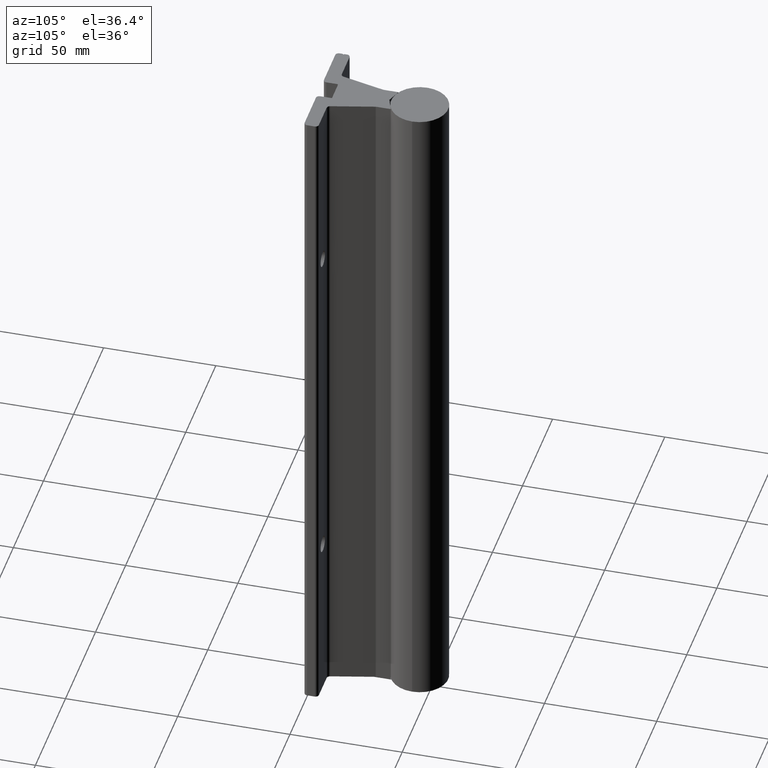
[diagram: clean part render]
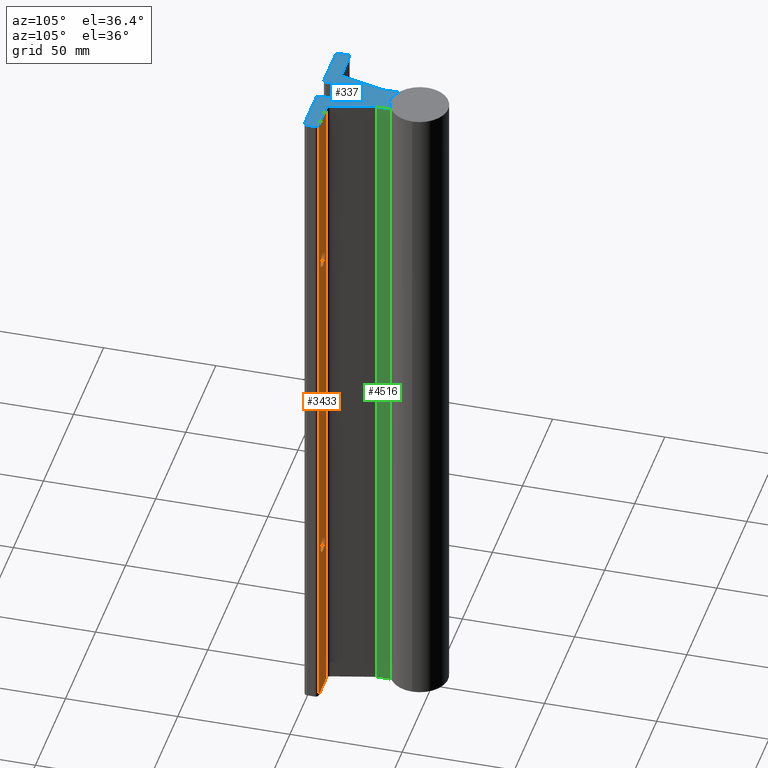
[diagram: same view with three faces highlighted in distinct colors, each labeled with its STEP entity id]
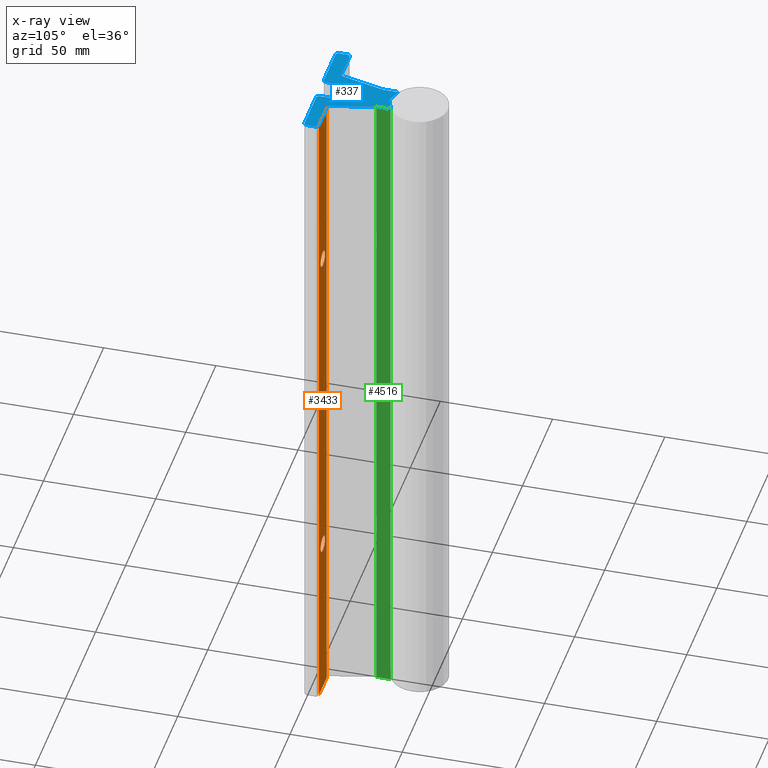
[diagram: x-ray of the same camera — body ghosted, the three highlighted faces saturated]
A machine part, auxiliary view with three faces highlighted in distinct colors.
The next image is the same camera in x-ray (body ghosted, the three faces saturated) — at least one of them is partly hidden behind the body in this view.
Their STEP definitions:

[orange] entity #3433 — the highlighted planar face has unit normal (0, 1, 0).
#56 = AXIS2_PLACEMENT_3D ( 'NONE', #1660, #5735, #5769 ) ;
#105 = DIRECTION ( 'NONE',  ( -1.000000000000000000, 7.291409235758707710E-16, 0.000000000000000000 ) ) ;
#317 = CIRCLE ( 'NONE', #3829, 0.1405000000000000415 ) ;
#435 = EDGE_CURVE ( 'NONE', #5494, #4003, #4183, .T. ) ;
#531 = AXIS2_PLACEMENT_3D ( 'NONE', #1830, #1417, #1363 ) ;
#542 = DIRECTION ( 'NONE',  ( -1.000000000000000000, 6.761083321907651051E-16, 0.000000000000000000 ) ) ;
#579 = DIRECTION ( 'NONE',  ( 0.000000000000000000, 0.000000000000000000, 1.000000000000000000 ) ) ;
#648 = FACE_BOUND ( 'NONE', #2346, .T. ) ;
#697 = ORIENTED_EDGE ( 'NONE', *, *, #5436, .T. ) ;
#741 = VERTEX_POINT ( 'NONE', #2890 ) ;
#887 = CARTESIAN_POINT ( 'NONE',  ( 0.7500000000000001110, 0.2500000000000000555, -8.859500000000000597 ) ) ;
#1130 = CIRCLE ( 'NONE', #4572, 0.1405000000000000415 ) ;
#1277 = EDGE_CURVE ( 'NONE', #3923, #741, #5801, .T. ) ;
#1279 = VERTEX_POINT ( 'NONE', #2075 ) ;
#1294 = EDGE_CURVE ( 'NONE', #5845, #3923, #1691, .T. ) ;
#1334 = ORIENTED_EDGE ( 'NONE', *, *, #1277, .F. ) ;
#1363 = DIRECTION ( 'NONE',  ( -1.000000000000000000, 7.291409235758707710E-16, 0.000000000000000000 ) ) ;
#1417 = DIRECTION ( 'NONE',  ( -6.761083321907651051E-16, -1.000000000000000000, 0.000000000000000000 ) ) ;
#1508 = VECTOR ( 'NONE', #1590, 39.37007874015748143 ) ;
#1523 = LINE ( 'NONE', #2043, #1793 ) ;
#1590 = DIRECTION ( 'NONE',  ( 0.000000000000000000, 0.000000000000000000, 1.000000000000000000 ) ) ;
#1660 = CARTESIAN_POINT ( 'NONE',  ( 1.002500000003299307, 0.2499999999999999167, -14.49573696227415098 ) ) ;
#1691 = LINE ( 'NONE', #4046, #5722 ) ;
#1724 = DIRECTION ( 'NONE',  ( 1.000000000000000000, -6.761083321907651051E-16, 0.000000000000000000 ) ) ;
#1793 = VECTOR ( 'NONE', #579, 39.37007874015748143 ) ;
#1830 = CARTESIAN_POINT ( 'NONE',  ( 0.7500000000000001110, 0.2500000000000000555, -3.000000000000000444 ) ) ;
#1857 = DIRECTION ( 'NONE',  ( -1.000000000000000000, 7.291409235758707710E-16, 0.000000000000000000 ) ) ;
#1934 = DIRECTION ( 'NONE',  ( -6.761083321907651051E-16, -1.000000000000000000, 0.000000000000000000 ) ) ;
#2043 = CARTESIAN_POINT ( 'NONE',  ( 0.4974315324966993579, 0.2500000000000003331, -14.49573696227415098 ) ) ;
#2075 = CARTESIAN_POINT ( 'NONE',  ( 0.7500000000000001110, 0.2500000000000000555, -2.859499999999999709 ) ) ;
#2246 = EDGE_CURVE ( 'NONE', #1279, #2692, #5325, .T. ) ;
#2346 = EDGE_LOOP ( 'NONE', ( #5777, #3414 ) ) ;
#2349 = CARTESIAN_POINT ( 'NONE',  ( 0.7500000000000001110, 0.2500000000000000555, -9.000000000000001776 ) ) ;
#2441 = FACE_BOUND ( 'NONE', #2861, .T. ) ;
#2511 = CARTESIAN_POINT ( 'NONE',  ( 1.002500000003299307, 0.2499999999999999167, -14.49573696227415098 ) ) ;
#2532 = EDGE_CURVE ( 'NONE', #741, #4997, #4744, .T. ) ;
#2554 = FACE_OUTER_BOUND ( 'NONE', #4902, .T. ) ;
#2692 = VERTEX_POINT ( 'NONE', #4220 ) ;
#2861 = EDGE_LOOP ( 'NONE', ( #697, #5463 ) ) ;
#2890 = CARTESIAN_POINT ( 'NONE',  ( 1.002500000003299307, 0.2499999999999999167, 0.000000000000000000 ) ) ;
#3114 = CARTESIAN_POINT ( 'NONE',  ( 0.4974315324966993579, 0.2500000000000003331, 0.000000000000000000 ) ) ;
#3134 = DIRECTION ( 'NONE',  ( -6.761083321907651051E-16, -1.000000000000000000, 0.000000000000000000 ) ) ;
#3357 = CARTESIAN_POINT ( 'NONE',  ( 1.002500000003299307, 0.2499999999999999167, 0.000000000000000000 ) ) ;
#3414 = ORIENTED_EDGE ( 'NONE', *, *, #435, .T. ) ;
#3433 = ADVANCED_FACE ( 'NONE', ( #648, #2441, #2554 ), #5830, .T. ) ;
#3453 = CARTESIAN_POINT ( 'NONE',  ( 0.4974315324966993579, 0.2500000000000002776, -12.00000000000000178 ) ) ;
#3816 = CARTESIAN_POINT ( 'NONE',  ( 0.7500000000000001110, 0.2500000000000000555, -9.000000000000001776 ) ) ;
#3829 = AXIS2_PLACEMENT_3D ( 'NONE', #5466, #3134, #1857 ) ;
#3902 = ORIENTED_EDGE ( 'NONE', *, *, #5049, .T. ) ;
#3923 = VERTEX_POINT ( 'NONE', #5208 ) ;
#3978 = AXIS2_PLACEMENT_3D ( 'NONE', #3816, #1934, #5701 ) ;
#4003 = VERTEX_POINT ( 'NONE', #4314 ) ;
#4005 = EDGE_CURVE ( 'NONE', #4003, #5494, #1130, .T. ) ;
#4046 = CARTESIAN_POINT ( 'NONE',  ( 1.002500000003299307, 0.2499999999999999167, -12.00000000000000178 ) ) ;
#4183 = CIRCLE ( 'NONE', #3978, 0.1405000000000000415 ) ;
#4220 = CARTESIAN_POINT ( 'NONE',  ( 0.7500000000000001110, 0.2500000000000000555, -3.140500000000000735 ) ) ;
#4227 = DIRECTION ( 'NONE',  ( -6.761083321907651051E-16, -1.000000000000000000, 0.000000000000000000 ) ) ;
#4314 = CARTESIAN_POINT ( 'NONE',  ( 0.7500000000000001110, 0.2500000000000000555, -9.140500000000001180 ) ) ;
#4348 = VECTOR ( 'NONE', #542, 39.37007874015748143 ) ;
#4572 = AXIS2_PLACEMENT_3D ( 'NONE', #2349, #4227, #105 ) ;
#4744 = LINE ( 'NONE', #3357, #4348 ) ;
#4902 = EDGE_LOOP ( 'NONE', ( #5679, #3902, #5093, #1334 ) ) ;
#4997 = VERTEX_POINT ( 'NONE', #3114 ) ;
#5049 = EDGE_CURVE ( 'NONE', #5845, #4997, #1523, .T. ) ;
#5093 = ORIENTED_EDGE ( 'NONE', *, *, #2532, .F. ) ;
#5208 = CARTESIAN_POINT ( 'NONE',  ( 1.002500000003299307, 0.2499999999999998890, -12.00000000000000178 ) ) ;
#5325 = CIRCLE ( 'NONE', #531, 0.1405000000000000415 ) ;
#5436 = EDGE_CURVE ( 'NONE', #2692, #1279, #317, .T. ) ;
#5463 = ORIENTED_EDGE ( 'NONE', *, *, #2246, .T. ) ;
#5466 = CARTESIAN_POINT ( 'NONE',  ( 0.7500000000000001110, 0.2500000000000000555, -3.000000000000000444 ) ) ;
#5494 = VERTEX_POINT ( 'NONE', #887 ) ;
#5679 = ORIENTED_EDGE ( 'NONE', *, *, #1294, .F. ) ;
#5701 = DIRECTION ( 'NONE',  ( -1.000000000000000000, 7.291409235758707710E-16, 0.000000000000000000 ) ) ;
#5722 = VECTOR ( 'NONE', #1724, 39.37007874015748143 ) ;
#5735 = DIRECTION ( 'NONE',  ( 6.761083321907651051E-16, 1.000000000000000000, -0.000000000000000000 ) ) ;
#5769 = DIRECTION ( 'NONE',  ( -1.000000000000000000, 6.761083321907651051E-16, 0.000000000000000000 ) ) ;
#5777 = ORIENTED_EDGE ( 'NONE', *, *, #4005, .T. ) ;
#5801 = LINE ( 'NONE', #2511, #1508 ) ;
#5830 = PLANE ( 'NONE',  #56 ) ;
#5845 = VERTEX_POINT ( 'NONE', #3453 ) ;

[blue] entity #337 — the highlighted planar face has unit normal (0, 0, 1).
#39 = VERTEX_POINT ( 'NONE', #2924 ) ;
#90 = CARTESIAN_POINT ( 'NONE',  ( -0.2500000000033027470, 1.305666897938102977, 0.000000000000000000 ) ) ;
#106 = AXIS2_PLACEMENT_3D ( 'NONE', #4982, #3576, #4951 ) ;
#115 = AXIS2_PLACEMENT_3D ( 'NONE', #2050, #1135, #2113 ) ;
#125 = CIRCLE ( 'NONE', #3461, 0.03200000000000002842 ) ;
#135 = VERTEX_POINT ( 'NONE', #2021 ) ;
#141 = AXIS2_PLACEMENT_3D ( 'NONE', #282, #3954, #185 ) ;
#145 = ORIENTED_EDGE ( 'NONE', *, *, #3524, .T. ) ;
#165 = EDGE_CURVE ( 'NONE', #4053, #3595, #5447, .T. ) ;
#184 = LINE ( 'NONE', #4910, #4050 ) ;
#185 = DIRECTION ( 'NONE',  ( 1.000000000000000000, 0.000000000000000000, 0.000000000000000000 ) ) ;
#213 = CARTESIAN_POINT ( 'NONE',  ( -0.2050000000033027348, 0.06000000000000010880, 0.000000000000000000 ) ) ;
#270 = ORIENTED_EDGE ( 'NONE', *, *, #2532, .T. ) ;
#282 = CARTESIAN_POINT ( 'NONE',  ( 0.2179999999966966973, 1.305666897899298906, 0.000000000000000000 ) ) ;
#283 = EDGE_CURVE ( 'NONE', #39, #135, #1324, .T. ) ;
#337 = ADVANCED_FACE ( 'NONE', ( #3159 ), #3245, .T. ) ;
#346 = ORIENTED_EDGE ( 'NONE', *, *, #4308, .T. ) ;
#359 = LINE ( 'NONE', #826, #5162 ) ;
#382 = VERTEX_POINT ( 'NONE', #3769 ) ;
#393 = VECTOR ( 'NONE', #3315, 39.37007874015748143 ) ;
#398 = VERTEX_POINT ( 'NONE', #4316 ) ;
#418 = AXIS2_PLACEMENT_3D ( 'NONE', #1106, #4857, #3567 ) ;
#424 = DIRECTION ( 'NONE',  ( 2.156722100261260166E-15, 1.000000000000000000, 0.000000000000000000 ) ) ;
#475 = EDGE_CURVE ( 'NONE', #3506, #2984, #2385, .T. ) ;
#494 = DIRECTION ( 'NONE',  ( 1.000000000000000000, -8.986342084421927875E-16, 0.000000000000000000 ) ) ;
#538 = VECTOR ( 'NONE', #5817, 39.37007874015748854 ) ;
#542 = DIRECTION ( 'NONE',  ( -1.000000000000000000, 6.761083321907651051E-16, 0.000000000000000000 ) ) ;
#568 = DIRECTION ( 'NONE',  ( 1.000000000000000000, 0.000000000000000000, 0.000000000000000000 ) ) ;
#593 = EDGE_CURVE ( 'NONE', #1040, #5239, #705, .T. ) ;
#611 = CIRCLE ( 'NONE', #106, 0.01500000000000031863 ) ;
#620 = DIRECTION ( 'NONE',  ( -0.2419218955872262378, 0.9702957262790985471, 0.000000000000000000 ) ) ;
#705 = LINE ( 'NONE', #4932, #4683 ) ;
#709 = VERTEX_POINT ( 'NONE', #4719 ) ;
#718 = CARTESIAN_POINT ( 'NONE',  ( -1.023021208602842957, 0.003618442752846434858, 0.000000000000000000 ) ) ;
#741 = VERTEX_POINT ( 'NONE', #2890 ) ;
#746 = EDGE_CURVE ( 'NONE', #4997, #2826, #3497, .T. ) ;
#753 = VECTOR ( 'NONE', #494, 39.37007874015748143 ) ;
#771 = EDGE_CURVE ( 'NONE', #2065, #774, #4922, .T. ) ;
#774 = VERTEX_POINT ( 'NONE', #4009 ) ;
#826 = CARTESIAN_POINT ( 'NONE',  ( -1.062500000003302247, 0.1175000000000001876, 0.000000000000000000 ) ) ;
#870 = CARTESIAN_POINT ( 'NONE',  ( -1.062500000003302469, 0.1175000000000001876, 0.000000000000000000 ) ) ;
#871 = EDGE_LOOP ( 'NONE', ( #3535, #4229, #3534, #5143, #944, #1675, #1349, #1177, #1192, #4505, #346, #145, #4540, #5417, #2000, #5109, #270, #4947, #2388, #2651, #3067, #4980, #2725, #1174, #3992, #1856, #2914, #3168, #3184, #4880, #2846, #2239, #5609, #1896, #2644, #1991, #3095 ) ) ;
#889 = CARTESIAN_POINT ( 'NONE',  ( -0.2180000000033027185, 1.305666897938102977, 0.000000000000000000 ) ) ;
#905 = LINE ( 'NONE', #1872, #4955 ) ;
#925 = CARTESIAN_POINT ( 'NONE',  ( 1.062500000003299805, 0.06000000000000058759, 0.000000000000000000 ) ) ;
#944 = ORIENTED_EDGE ( 'NONE', *, *, #4052, .T. ) ;
#952 = VECTOR ( 'NONE', #1751, 39.37007874015748854 ) ;
#1026 = DIRECTION ( 'NONE',  ( 0.000000000000000000, 0.000000000000000000, 1.000000000000000000 ) ) ;
#1040 = VERTEX_POINT ( 'NONE', #1969 ) ;
#1049 = LINE ( 'NONE', #3325, #4944 ) ;
#1059 = LINE ( 'NONE', #5726, #4278 ) ;
#1100 = CARTESIAN_POINT ( 'NONE',  ( -1.052500000003302905, 0.1417264973081044654, 0.000000000000000000 ) ) ;
#1106 = CARTESIAN_POINT ( 'NONE',  ( 1.002500000003299307, 0.06000000000000058759, 0.000000000000000000 ) ) ;
#1134 = VERTEX_POINT ( 'NONE', #2357 ) ;
#1135 = DIRECTION ( 'NONE',  ( 0.000000000000000000, 0.000000000000000000, 1.000000000000000000 ) ) ;
#1158 = DIRECTION ( 'NONE',  ( -0.000000000000000000, -0.000000000000000000, -1.000000000000000000 ) ) ;
#1164 = CARTESIAN_POINT ( 'NONE',  ( -1.062500000003302247, 0.1474999999999999922, 0.000000000000000000 ) ) ;
#1174 = ORIENTED_EDGE ( 'NONE', *, *, #4149, .T. ) ;
#1177 = ORIENTED_EDGE ( 'NONE', *, *, #4864, .T. ) ;
#1183 = CARTESIAN_POINT ( 'NONE',  ( -0.3125000000033035241, 1.054219864243891802, 0.000000000000000000 ) ) ;
#1192 = ORIENTED_EDGE ( 'NONE', *, *, #3921, .T. ) ;
#1239 = CARTESIAN_POINT ( 'NONE',  ( -1.002500000003302638, 0.06000000000000031697, 0.000000000000000000 ) ) ;
#1241 = EDGE_CURVE ( 'NONE', #2038, #741, #4926, .T. ) ;
#1259 = EDGE_CURVE ( 'NONE', #135, #1271, #5397, .T. ) ;
#1271 = VERTEX_POINT ( 'NONE', #1100 ) ;
#1284 = VERTEX_POINT ( 'NONE', #2170 ) ;
#1289 = DIRECTION ( 'NONE',  ( 1.285575526430243055E-14, -1.000000000000000000, 0.000000000000000000 ) ) ;
#1324 = LINE ( 'NONE', #5944, #2880 ) ;
#1326 = CIRCLE ( 'NONE', #1422, 0.06000000000000017819 ) ;
#1337 = LINE ( 'NONE', #2225, #952 ) ;
#1346 = AXIS2_PLACEMENT_3D ( 'NONE', #1894, #4783, #3759 ) ;
#1349 = ORIENTED_EDGE ( 'NONE', *, *, #475, .T. ) ;
#1359 = EDGE_CURVE ( 'NONE', #709, #1134, #5695, .T. ) ;
#1422 = AXIS2_PLACEMENT_3D ( 'NONE', #5406, #4001, #5882 ) ;
#1472 = VERTEX_POINT ( 'NONE', #4011 ) ;
#1511 = LINE ( 'NONE', #2937, #2006 ) ;
#1537 = VECTOR ( 'NONE', #5862, 39.37007874015748854 ) ;
#1593 = CARTESIAN_POINT ( 'NONE',  ( -1.052500000003302905, 0.1232735026918957977, 0.000000000000000000 ) ) ;
#1622 = DIRECTION ( 'NONE',  ( 1.000000000000000000, 0.000000000000000000, 0.000000000000000000 ) ) ;
#1675 = ORIENTED_EDGE ( 'NONE', *, *, #4327, .T. ) ;
#1701 = VECTOR ( 'NONE', #3027, 39.37007874015748854 ) ;
#1709 = VECTOR ( 'NONE', #2874, 39.37007874015748854 ) ;
#1751 = DIRECTION ( 'NONE',  ( 0.9396926207858971036, -0.3420201433256993551, 0.000000000000000000 ) ) ;
#1759 = CARTESIAN_POINT ( 'NONE',  ( 0.2518565171966969940, 1.039099745799999752, 0.000000000000000000 ) ) ;
#1763 = EDGE_CURVE ( 'NONE', #1271, #3753, #2488, .T. ) ;
#1856 = ORIENTED_EDGE ( 'NONE', *, *, #2918, .T. ) ;
#1872 = CARTESIAN_POINT ( 'NONE',  ( 4.097771990496394828E-16, 1.217911113771135811, 0.000000000000000000 ) ) ;
#1894 = CARTESIAN_POINT ( 'NONE',  ( 0.4974315325076398842, 0.3124999999999996669, 0.000000000000000000 ) ) ;
#1896 = ORIENTED_EDGE ( 'NONE', *, *, #1763, .T. ) ;
#1928 = VERTEX_POINT ( 'NONE', #3802 ) ;
#1933 = EDGE_CURVE ( 'NONE', #1472, #3038, #5684, .T. ) ;
#1965 = DIRECTION ( 'NONE',  ( 0.9396926207859099822, 0.3420201433256641055, 0.000000000000000000 ) ) ;
#1969 = CARTESIAN_POINT ( 'NONE',  ( -1.013079618845818874, 1.570812596356951301E-15, 0.000000000000000000 ) ) ;
#1991 = ORIENTED_EDGE ( 'NONE', *, *, #3464, .T. ) ;
#1996 = CARTESIAN_POINT ( 'NONE',  ( 0.4367880495966964816, 0.2973798815999993961, 0.000000000000000000 ) ) ;
#2000 = ORIENTED_EDGE ( 'NONE', *, *, #4271, .T. ) ;
#2006 = VECTOR ( 'NONE', #1965, 39.37007874015748854 ) ;
#2021 = CARTESIAN_POINT ( 'NONE',  ( -1.062500000003302247, 0.1474999999999999922, 0.000000000000000000 ) ) ;
#2038 = VERTEX_POINT ( 'NONE', #5781 ) ;
#2050 = CARTESIAN_POINT ( 'NONE',  ( 1.002500000003299307, 0.1899999999999999467, 0.000000000000000000 ) ) ;
#2058 = DIRECTION ( 'NONE',  ( -0.000000000000000000, -0.000000000000000000, -1.000000000000000000 ) ) ;
#2065 = VERTEX_POINT ( 'NONE', #3890 ) ;
#2072 = EDGE_CURVE ( 'NONE', #398, #2206, #184, .T. ) ;
#2090 = VECTOR ( 'NONE', #5319, 39.37007874015748143 ) ;
#2098 = VERTEX_POINT ( 'NONE', #3135 ) ;
#2113 = DIRECTION ( 'NONE',  ( 1.000000000000000000, 0.000000000000000000, 0.000000000000000000 ) ) ;
#2131 = CARTESIAN_POINT ( 'NONE',  ( 0.3124999999966975306, 1.054219864644973415, 0.000000000000000000 ) ) ;
#2170 = CARTESIAN_POINT ( 'NONE',  ( -0.2500000000033027470, 1.054219864300000475, 0.000000000000000000 ) ) ;
#2206 = VERTEX_POINT ( 'NONE', #3797 ) ;
#2225 = CARTESIAN_POINT ( 'NONE',  ( 0.2444787913971579463, 0.003618442752846076204, 0.000000000000000000 ) ) ;
#2239 = ORIENTED_EDGE ( 'NONE', *, *, #283, .T. ) ;
#2266 = DIRECTION ( 'NONE',  ( 1.000000000000000000, 0.000000000000000000, -0.000000000000000000 ) ) ;
#2269 = CIRCLE ( 'NONE', #3446, 0.06250000000000069389 ) ;
#2287 = EDGE_CURVE ( 'NONE', #4542, #4018, #125, .T. ) ;
#2348 = EDGE_CURVE ( 'NONE', #5674, #2098, #5719, .T. ) ;
#2357 = CARTESIAN_POINT ( 'NONE',  ( 0.2499999999966968922, 1.305666897899299350, 0.000000000000000000 ) ) ;
#2374 = DIRECTION ( 'NONE',  ( -0.9396926208019645843, 0.3420201432815545561, 0.000000000000000000 ) ) ;
#2385 = LINE ( 'NONE', #3848, #753 ) ;
#2388 = ORIENTED_EDGE ( 'NONE', *, *, #3667, .T. ) ;
#2422 = EDGE_CURVE ( 'NONE', #774, #398, #5526, .T. ) ;
#2449 = EDGE_CURVE ( 'NONE', #1284, #2065, #2864, .T. ) ;
#2456 = CARTESIAN_POINT ( 'NONE',  ( -1.052500000003302905, 0.1417264973081045210, 0.000000000000000000 ) ) ;
#2488 = LINE ( 'NONE', #2456, #2090 ) ;
#2527 = CARTESIAN_POINT ( 'NONE',  ( -0.2518565171033020911, 1.039099745799999752, 0.000000000000000000 ) ) ;
#2531 = CARTESIAN_POINT ( 'NONE',  ( -0.2500000000033027470, 1.305666897938102977, 0.000000000000000000 ) ) ;
#2532 = EDGE_CURVE ( 'NONE', #741, #4997, #4744, .T. ) ;
#2553 = DIRECTION ( 'NONE',  ( -0.000000000000000000, -0.000000000000000000, -1.000000000000000000 ) ) ;
#2592 = AXIS2_PLACEMENT_3D ( 'NONE', #5465, #3221, #2266 ) ;
#2610 = CARTESIAN_POINT ( 'NONE',  ( -0.1900000000033017222, 0.2500000000000000555, 0.000000000000000000 ) ) ;
#2644 = ORIENTED_EDGE ( 'NONE', *, *, #6062, .T. ) ;
#2651 = ORIENTED_EDGE ( 'NONE', *, *, #4977, .T. ) ;
#2671 = AXIS2_PLACEMENT_3D ( 'NONE', #1183, #1158, #3048 ) ;
#2678 = LINE ( 'NONE', #3185, #3199 ) ;
#2710 = DIRECTION ( 'NONE',  ( 1.000000000000000000, 0.000000000000000000, 0.000000000000000000 ) ) ;
#2725 = ORIENTED_EDGE ( 'NONE', *, *, #3012, .T. ) ;
#2781 = LINE ( 'NONE', #3368, #3772 ) ;
#2796 = AXIS2_PLACEMENT_3D ( 'NONE', #3379, #2816, #568 ) ;
#2816 = DIRECTION ( 'NONE',  ( 0.000000000000000000, 0.000000000000000000, 1.000000000000000000 ) ) ;
#2826 = VERTEX_POINT ( 'NONE', #3609 ) ;
#2839 = CARTESIAN_POINT ( 'NONE',  ( -1.023021208602842957, 0.003618442752846349423, 0.000000000000000000 ) ) ;
#2846 = ORIENTED_EDGE ( 'NONE', *, *, #3617, .T. ) ;
#2864 = CIRCLE ( 'NONE', #2671, 0.06250000000000073552 ) ;
#2867 = CARTESIAN_POINT ( 'NONE',  ( 0.2649999999966984876, 0.06000000000000031697, 0.000000000000000000 ) ) ;
#2874 = DIRECTION ( 'NONE',  ( 0.9396926207859244151, 0.3420201433256246926, 0.000000000000000000 ) ) ;
#2880 = VECTOR ( 'NONE', #1289, 39.37007874015748143 ) ;
#2890 = CARTESIAN_POINT ( 'NONE',  ( 1.002500000003299307, 0.2499999999999999167, 0.000000000000000000 ) ) ;
#2914 = ORIENTED_EDGE ( 'NONE', *, *, #2449, .T. ) ;
#2918 = EDGE_CURVE ( 'NONE', #4018, #1284, #5283, .T. ) ;
#2924 = CARTESIAN_POINT ( 'NONE',  ( -1.062500000003302913, 0.1899999999999999467, 0.000000000000000000 ) ) ;
#2932 = EDGE_CURVE ( 'NONE', #5239, #4053, #1511, .T. ) ;
#2937 = CARTESIAN_POINT ( 'NONE',  ( -0.2544203811607963495, -1.365923996832131609E-16, 0.000000000000000000 ) ) ;
#2984 = VERTEX_POINT ( 'NONE', #4214 ) ;
#3006 = EDGE_CURVE ( 'NONE', #4601, #1040, #3778, .T. ) ;
#3012 = EDGE_CURVE ( 'NONE', #4802, #1928, #1049, .T. ) ;
#3027 = DIRECTION ( 'NONE',  ( 0.8660254037844538066, -0.4999999999999735767, 0.000000000000000000 ) ) ;
#3038 = VERTEX_POINT ( 'NONE', #4883 ) ;
#3048 = DIRECTION ( 'NONE',  ( 1.000000000000000000, 0.000000000000000000, 0.000000000000000000 ) ) ;
#3067 = ORIENTED_EDGE ( 'NONE', *, *, #1359, .T. ) ;
#3068 = EDGE_CURVE ( 'NONE', #1134, #4802, #4565, .T. ) ;
#3095 = ORIENTED_EDGE ( 'NONE', *, *, #5066, .T. ) ;
#3104 = AXIS2_PLACEMENT_3D ( 'NONE', #2610, #4983, #2710 ) ;
#3114 = CARTESIAN_POINT ( 'NONE',  ( 0.4974315324966993579, 0.2500000000000003331, 0.000000000000000000 ) ) ;
#3135 = CARTESIAN_POINT ( 'NONE',  ( 0.2444787913971579463, 0.003618442752846084878, 0.000000000000000000 ) ) ;
#3159 = FACE_OUTER_BOUND ( 'NONE', #871, .T. ) ;
#3168 = ORIENTED_EDGE ( 'NONE', *, *, #771, .T. ) ;
#3184 = ORIENTED_EDGE ( 'NONE', *, *, #2422, .T. ) ;
#3185 = CARTESIAN_POINT ( 'NONE',  ( -0.2050000000033029290, 0.06000000000000010880, 0.000000000000000000 ) ) ;
#3199 = VECTOR ( 'NONE', #424, 39.37007874015748143 ) ;
#3202 = LINE ( 'NONE', #1996, #5842 ) ;
#3218 = VERTEX_POINT ( 'NONE', #925 ) ;
#3221 = DIRECTION ( 'NONE',  ( 0.000000000000000000, 0.000000000000000000, 1.000000000000000000 ) ) ;
#3227 = CARTESIAN_POINT ( 'NONE',  ( -0.2544203811607962940, 0.000000000000000000, 0.000000000000000000 ) ) ;
#3239 = VERTEX_POINT ( 'NONE', #3462 ) ;
#3245 = PLANE ( 'NONE',  #2592 ) ;
#3315 = DIRECTION ( 'NONE',  ( 1.358063343679013871E-16, 1.000000000000000000, 0.000000000000000000 ) ) ;
#3321 = DIRECTION ( 'NONE',  ( 0.000000000000000000, 0.000000000000000000, 1.000000000000000000 ) ) ;
#3325 = CARTESIAN_POINT ( 'NONE',  ( 0.2498416863023912027, 1.308846050806876882, 0.000000000000000000 ) ) ;
#3357 = CARTESIAN_POINT ( 'NONE',  ( 1.002500000003299307, 0.2499999999999999167, 0.000000000000000000 ) ) ;
#3368 = CARTESIAN_POINT ( 'NONE',  ( 0.2049999999966982400, 0.2500000000000001110, 0.000000000000000000 ) ) ;
#3374 = DIRECTION ( 'NONE',  ( 0.000000000000000000, 0.000000000000000000, 1.000000000000000000 ) ) ;
#3379 = CARTESIAN_POINT ( 'NONE',  ( -0.2650000000033024827, 0.06000000000000038636, 0.000000000000000000 ) ) ;
#3388 = CARTESIAN_POINT ( 'NONE',  ( -1.052500000003302905, 0.1232735026918957977, 0.000000000000000000 ) ) ;
#3440 = CARTESIAN_POINT ( 'NONE',  ( -0.2498416863082725259, 1.308846050852938259, 0.000000000000000000 ) ) ;
#3446 = AXIS2_PLACEMENT_3D ( 'NONE', #2131, #2058, #5791 ) ;
#3461 = AXIS2_PLACEMENT_3D ( 'NONE', #889, #3321, #4209 ) ;
#3462 = CARTESIAN_POINT ( 'NONE',  ( 0.2544203811541909666, -3.414809992080329023E-17, 0.000000000000000000 ) ) ;
#3464 = EDGE_CURVE ( 'NONE', #5201, #4784, #359, .T. ) ;
#3497 = CIRCLE ( 'NONE', #1346, 0.06249999999999933387 ) ;
#3498 = DIRECTION ( 'NONE',  ( 1.000000000000000000, 0.000000000000000000, 0.000000000000000000 ) ) ;
#3506 = VERTEX_POINT ( 'NONE', #6012 ) ;
#3518 = DIRECTION ( 'NONE',  ( -4.202843067175812201E-15, 1.000000000000000000, 0.000000000000000000 ) ) ;
#3524 = EDGE_CURVE ( 'NONE', #3239, #1472, #3706, .T. ) ;
#3534 = ORIENTED_EDGE ( 'NONE', *, *, #2932, .T. ) ;
#3535 = ORIENTED_EDGE ( 'NONE', *, *, #3006, .T. ) ;
#3567 = DIRECTION ( 'NONE',  ( 1.000000000000000000, 0.000000000000000000, 0.000000000000000000 ) ) ;
#3575 = AXIS2_PLACEMENT_3D ( 'NONE', #2867, #3374, #5249 ) ;
#3576 = DIRECTION ( 'NONE',  ( -0.000000000000000000, -0.000000000000000000, -1.000000000000000000 ) ) ;
#3595 = VERTEX_POINT ( 'NONE', #213 ) ;
#3609 = CARTESIAN_POINT ( 'NONE',  ( 0.4367880495966964260, 0.2973798815999993961, 0.000000000000000000 ) ) ;
#3617 = EDGE_CURVE ( 'NONE', #2206, #39, #1326, .T. ) ;
#3667 = EDGE_CURVE ( 'NONE', #2826, #4027, #3202, .T. ) ;
#3706 = LINE ( 'NONE', #4196, #5550 ) ;
#3753 = VERTEX_POINT ( 'NONE', #1593 ) ;
#3759 = DIRECTION ( 'NONE',  ( 1.000000000000000000, 0.000000000000000000, 0.000000000000000000 ) ) ;
#3769 = CARTESIAN_POINT ( 'NONE',  ( 0.2049999999966982123, 0.2500000000000001110, 0.000000000000000000 ) ) ;
#3772 = VECTOR ( 'NONE', #3814, 39.37007874015748143 ) ;
#3778 = LINE ( 'NONE', #2839, #4557 ) ;
#3797 = CARTESIAN_POINT ( 'NONE',  ( -1.002500000003302860, 0.2500000000000000555, 0.000000000000000000 ) ) ;
#3802 = CARTESIAN_POINT ( 'NONE',  ( 4.097771990496394828E-16, 1.217911113771135811, 0.000000000000000000 ) ) ;
#3814 = DIRECTION ( 'NONE',  ( 1.976995258572823265E-15, -1.000000000000000000, 0.000000000000000000 ) ) ;
#3839 = DIRECTION ( 'NONE',  ( 1.000000000000000000, 0.000000000000000000, 0.000000000000000000 ) ) ;
#3848 = CARTESIAN_POINT ( 'NONE',  ( -0.1900000000033017222, 0.2650000000000007350, 0.000000000000000000 ) ) ;
#3862 = DIRECTION ( 'NONE',  ( -0.9396926208550562265, -0.3420201431356865718, 0.000000000000000000 ) ) ;
#3890 = CARTESIAN_POINT ( 'NONE',  ( -0.2518565171033020356, 1.039099745799999752, 0.000000000000000000 ) ) ;
#3921 = EDGE_CURVE ( 'NONE', #382, #5674, #2781, .T. ) ;
#3954 = DIRECTION ( 'NONE',  ( 0.000000000000000000, 0.000000000000000000, 1.000000000000000000 ) ) ;
#3982 = CARTESIAN_POINT ( 'NONE',  ( -1.062500000003302025, 0.06000000000000018513, 0.000000000000000000 ) ) ;
#3992 = ORIENTED_EDGE ( 'NONE', *, *, #2287, .T. ) ;
#4001 = DIRECTION ( 'NONE',  ( 0.000000000000000000, 0.000000000000000000, 1.000000000000000000 ) ) ;
#4009 = CARTESIAN_POINT ( 'NONE',  ( -0.4367880495033028554, 0.2973798815999998402, 0.000000000000000000 ) ) ;
#4011 = CARTESIAN_POINT ( 'NONE',  ( 1.013079618845805774, 0.000000000000000000, 0.000000000000000000 ) ) ;
#4018 = VERTEX_POINT ( 'NONE', #2531 ) ;
#4027 = VERTEX_POINT ( 'NONE', #1759 ) ;
#4041 = CARTESIAN_POINT ( 'NONE',  ( -0.2444787914037632459, 0.003618442752845649462, 0.000000000000000000 ) ) ;
#4045 = VERTEX_POINT ( 'NONE', #5456 ) ;
#4050 = VECTOR ( 'NONE', #5257, 39.37007874015748143 ) ;
#4052 = EDGE_CURVE ( 'NONE', #3595, #4045, #2678, .T. ) ;
#4053 = VERTEX_POINT ( 'NONE', #4041 ) ;
#4106 = DIRECTION ( 'NONE',  ( 4.751039988981327336E-15, -1.000000000000000000, 0.000000000000000000 ) ) ;
#4134 = CARTESIAN_POINT ( 'NONE',  ( 0.2498416863023912027, 1.308846050806876882, 0.000000000000000000 ) ) ;
#4149 = EDGE_CURVE ( 'NONE', #1928, #4542, #905, .T. ) ;
#4196 = CARTESIAN_POINT ( 'NONE',  ( -2.500000000000000000, 0.000000000000000000, 0.000000000000000000 ) ) ;
#4209 = DIRECTION ( 'NONE',  ( 1.000000000000000000, 0.000000000000000000, 0.000000000000000000 ) ) ;
#4214 = CARTESIAN_POINT ( 'NONE',  ( 0.1899999999966978936, 0.2650000000000004019, 0.000000000000000000 ) ) ;
#4229 = ORIENTED_EDGE ( 'NONE', *, *, #593, .T. ) ;
#4271 = EDGE_CURVE ( 'NONE', #3218, #2038, #1059, .T. ) ;
#4278 = VECTOR ( 'NONE', #3518, 39.37007874015748143 ) ;
#4308 = EDGE_CURVE ( 'NONE', #2098, #3239, #1337, .T. ) ;
#4316 = CARTESIAN_POINT ( 'NONE',  ( -0.4974315324033023455, 0.2499999999999995837, 0.000000000000000000 ) ) ;
#4322 = AXIS2_PLACEMENT_3D ( 'NONE', #1239, #1026, #3839 ) ;
#4327 = EDGE_CURVE ( 'NONE', #4045, #3506, #4685, .T. ) ;
#4348 = VECTOR ( 'NONE', #542, 39.37007874015748143 ) ;
#4505 = ORIENTED_EDGE ( 'NONE', *, *, #2348, .T. ) ;
#4540 = ORIENTED_EDGE ( 'NONE', *, *, #1933, .T. ) ;
#4542 = VERTEX_POINT ( 'NONE', #3440 ) ;
#4557 = VECTOR ( 'NONE', #5712, 39.37007874015748854 ) ;
#4565 = CIRCLE ( 'NONE', #141, 0.03200000000000019496 ) ;
#4601 = VERTEX_POINT ( 'NONE', #718 ) ;
#4683 = VECTOR ( 'NONE', #3498, 39.37007874015748143 ) ;
#4685 = CIRCLE ( 'NONE', #3104, 0.01500000000000072803 ) ;
#4699 = CARTESIAN_POINT ( 'NONE',  ( 0.2499999999966968089, 1.054219864300000475, 0.000000000000000000 ) ) ;
#4719 = CARTESIAN_POINT ( 'NONE',  ( 0.2499999999966968089, 1.054219864300000475, 0.000000000000000000 ) ) ;
#4744 = LINE ( 'NONE', #3357, #4348 ) ;
#4783 = DIRECTION ( 'NONE',  ( -0.000000000000000000, -0.000000000000000000, -1.000000000000000000 ) ) ;
#4784 = VERTEX_POINT ( 'NONE', #3982 ) ;
#4802 = VERTEX_POINT ( 'NONE', #4134 ) ;
#4855 = VECTOR ( 'NONE', #5685, 39.37007874015748143 ) ;
#4857 = DIRECTION ( 'NONE',  ( 0.000000000000000000, 0.000000000000000000, 1.000000000000000000 ) ) ;
#4864 = EDGE_CURVE ( 'NONE', #2984, #382, #611, .T. ) ;
#4880 = ORIENTED_EDGE ( 'NONE', *, *, #2072, .T. ) ;
#4883 = CARTESIAN_POINT ( 'NONE',  ( 1.023021208602838961, 0.003618442752845333309, 0.000000000000000000 ) ) ;
#4910 = CARTESIAN_POINT ( 'NONE',  ( -0.4974315324033023455, 0.2499999999999998057, 0.000000000000000000 ) ) ;
#4922 = LINE ( 'NONE', #2527, #1537 ) ;
#4926 = CIRCLE ( 'NONE', #115, 0.05999999999999990757 ) ;
#4932 = CARTESIAN_POINT ( 'NONE',  ( -2.500000000000000000, 0.000000000000000000, 0.000000000000000000 ) ) ;
#4944 = VECTOR ( 'NONE', #3862, 39.37007874015748143 ) ;
#4947 = ORIENTED_EDGE ( 'NONE', *, *, #746, .T. ) ;
#4951 = DIRECTION ( 'NONE',  ( 1.000000000000000000, 0.000000000000000000, 0.000000000000000000 ) ) ;
#4955 = VECTOR ( 'NONE', #2374, 39.37007874015748854 ) ;
#4977 = EDGE_CURVE ( 'NONE', #4027, #709, #2269, .T. ) ;
#4980 = ORIENTED_EDGE ( 'NONE', *, *, #3068, .T. ) ;
#4982 = CARTESIAN_POINT ( 'NONE',  ( 0.1899999999966978936, 0.2500000000000000555, 0.000000000000000000 ) ) ;
#4983 = DIRECTION ( 'NONE',  ( -0.000000000000000000, -0.000000000000000000, -1.000000000000000000 ) ) ;
#4997 = VERTEX_POINT ( 'NONE', #3114 ) ;
#5066 = EDGE_CURVE ( 'NONE', #4784, #4601, #5911, .T. ) ;
#5084 = DIRECTION ( 'NONE',  ( 1.000000000000000000, 0.000000000000000000, 0.000000000000000000 ) ) ;
#5109 = ORIENTED_EDGE ( 'NONE', *, *, #1241, .T. ) ;
#5143 = ORIENTED_EDGE ( 'NONE', *, *, #165, .T. ) ;
#5162 = VECTOR ( 'NONE', #4106, 39.37007874015748143 ) ;
#5201 = VERTEX_POINT ( 'NONE', #870 ) ;
#5239 = VERTEX_POINT ( 'NONE', #3227 ) ;
#5249 = DIRECTION ( 'NONE',  ( 1.000000000000000000, 0.000000000000000000, 0.000000000000000000 ) ) ;
#5257 = DIRECTION ( 'NONE',  ( -1.000000000000000000, 5.408866656525876571E-16, 0.000000000000000000 ) ) ;
#5283 = LINE ( 'NONE', #90, #4855 ) ;
#5319 = DIRECTION ( 'NONE',  ( 0.000000000000000000, -1.000000000000000000, 0.000000000000000000 ) ) ;
#5332 = AXIS2_PLACEMENT_3D ( 'NONE', #5829, #2553, #1622 ) ;
#5365 = EDGE_CURVE ( 'NONE', #3038, #3218, #5614, .T. ) ;
#5397 = LINE ( 'NONE', #1164, #1701 ) ;
#5406 = CARTESIAN_POINT ( 'NONE',  ( -1.002500000003302638, 0.1899999999999999467, 0.000000000000000000 ) ) ;
#5417 = ORIENTED_EDGE ( 'NONE', *, *, #5365, .T. ) ;
#5447 = CIRCLE ( 'NONE', #2796, 0.05999999999999976880 ) ;
#5456 = CARTESIAN_POINT ( 'NONE',  ( -0.2050000000033025405, 0.2500000000000001110, -0.000000000000000000 ) ) ;
#5465 = CARTESIAN_POINT ( 'NONE',  ( 0.000000000000000000, 0.000000000000000000, 0.000000000000000000 ) ) ;
#5526 = CIRCLE ( 'NONE', #5332, 0.06250000000000015266 ) ;
#5550 = VECTOR ( 'NONE', #5084, 39.37007874015748143 ) ;
#5598 = CARTESIAN_POINT ( 'NONE',  ( 1.013079618845805774, 0.000000000000000000, 0.000000000000000000 ) ) ;
#5609 = ORIENTED_EDGE ( 'NONE', *, *, #1259, .T. ) ;
#5614 = CIRCLE ( 'NONE', #418, 0.06000000000000045575 ) ;
#5674 = VERTEX_POINT ( 'NONE', #5900 ) ;
#5684 = LINE ( 'NONE', #5598, #1709 ) ;
#5685 = DIRECTION ( 'NONE',  ( 0.000000000000000000, -1.000000000000000000, 0.000000000000000000 ) ) ;
#5695 = LINE ( 'NONE', #4699, #393 ) ;
#5712 = DIRECTION ( 'NONE',  ( 0.9396926207858926627, -0.3420201433257117896, 0.000000000000000000 ) ) ;
#5718 = LINE ( 'NONE', #3388, #538 ) ;
#5719 = CIRCLE ( 'NONE', #3575, 0.05999999999999987288 ) ;
#5726 = CARTESIAN_POINT ( 'NONE',  ( 1.062500000003299805, 0.06000000000000058759, 0.000000000000000000 ) ) ;
#5781 = CARTESIAN_POINT ( 'NONE',  ( 1.062500000003299139, 0.1899999999999998912, 0.000000000000000000 ) ) ;
#5791 = DIRECTION ( 'NONE',  ( 1.000000000000000000, 0.000000000000000000, 0.000000000000000000 ) ) ;
#5817 = DIRECTION ( 'NONE',  ( -0.8660254037844486996, -0.4999999999999824030, 0.000000000000000000 ) ) ;
#5829 = CARTESIAN_POINT ( 'NONE',  ( -0.4974315324142474792, 0.3124999999999997224, 0.000000000000000000 ) ) ;
#5842 = VECTOR ( 'NONE', #620, 39.37007874015748854 ) ;
#5862 = DIRECTION ( 'NONE',  ( -0.2419218955872280141, -0.9702957262790979920, 0.000000000000000000 ) ) ;
#5882 = DIRECTION ( 'NONE',  ( 1.000000000000000000, 0.000000000000000000, 0.000000000000000000 ) ) ;
#5900 = CARTESIAN_POINT ( 'NONE',  ( 0.2049999999966986286, 0.06000000000000027534, 0.000000000000000000 ) ) ;
#5911 = CIRCLE ( 'NONE', #4322, 0.05999999999999949818 ) ;
#5944 = CARTESIAN_POINT ( 'NONE',  ( -1.062500000003302913, 0.1899999999999999467, 0.000000000000000000 ) ) ;
#6012 = CARTESIAN_POINT ( 'NONE',  ( -0.1900000000033017222, 0.2650000000000007905, 0.000000000000000000 ) ) ;
#6062 = EDGE_CURVE ( 'NONE', #3753, #5201, #5718, .T. ) ;

[green] entity #4516 — the highlighted planar face has unit normal (1, -0, 0).
#174 = EDGE_CURVE ( 'NONE', #5877, #1134, #5683, .T. ) ;
#305 = CARTESIAN_POINT ( 'NONE',  ( 0.2499999999966968089, 1.054219864300000475, -12.00000000000000178 ) ) ;
#393 = VECTOR ( 'NONE', #3315, 39.37007874015748143 ) ;
#541 = ORIENTED_EDGE ( 'NONE', *, *, #174, .T. ) ;
#709 = VERTEX_POINT ( 'NONE', #4719 ) ;
#970 = ORIENTED_EDGE ( 'NONE', *, *, #5167, .F. ) ;
#1077 = CARTESIAN_POINT ( 'NONE',  ( 0.2499999999966968645, 1.305666897899299350, -14.49573696227415098 ) ) ;
#1134 = VERTEX_POINT ( 'NONE', #2357 ) ;
#1263 = LINE ( 'NONE', #305, #5133 ) ;
#1359 = EDGE_CURVE ( 'NONE', #709, #1134, #5695, .T. ) ;
#1480 = FACE_OUTER_BOUND ( 'NONE', #4020, .T. ) ;
#1942 = PLANE ( 'NONE',  #4091 ) ;
#1978 = LINE ( 'NONE', #4340, #5011 ) ;
#2155 = EDGE_CURVE ( 'NONE', #5877, #4058, #1263, .T. ) ;
#2286 = CARTESIAN_POINT ( 'NONE',  ( 0.2499999999966968089, 1.054219864300000475, -12.00000000000000178 ) ) ;
#2357 = CARTESIAN_POINT ( 'NONE',  ( 0.2499999999966968922, 1.305666897899299350, 0.000000000000000000 ) ) ;
#2428 = DIRECTION ( 'NONE',  ( 0.000000000000000000, 0.000000000000000000, 1.000000000000000000 ) ) ;
#2624 = ORIENTED_EDGE ( 'NONE', *, *, #1359, .F. ) ;
#2949 = DIRECTION ( 'NONE',  ( 0.000000000000000000, 0.000000000000000000, 1.000000000000000000 ) ) ;
#2995 = CARTESIAN_POINT ( 'NONE',  ( 0.2499999999966968645, 1.305666897899299350, -12.00000000000000178 ) ) ;
#3115 = ORIENTED_EDGE ( 'NONE', *, *, #2155, .F. ) ;
#3315 = DIRECTION ( 'NONE',  ( 1.358063343679013871E-16, 1.000000000000000000, 0.000000000000000000 ) ) ;
#3892 = DIRECTION ( 'NONE',  ( 1.000000000000000000, -1.358063343679013871E-16, 0.000000000000000000 ) ) ;
#4020 = EDGE_LOOP ( 'NONE', ( #3115, #541, #2624, #970 ) ) ;
#4058 = VERTEX_POINT ( 'NONE', #2286 ) ;
#4091 = AXIS2_PLACEMENT_3D ( 'NONE', #5786, #3892, #4860 ) ;
#4119 = DIRECTION ( 'NONE',  ( -1.358063343679013871E-16, -1.000000000000000000, 0.000000000000000000 ) ) ;
#4340 = CARTESIAN_POINT ( 'NONE',  ( 0.2499999999966968089, 1.054219864300000475, -14.49573696227415098 ) ) ;
#4516 = ADVANCED_FACE ( 'NONE', ( #1480 ), #1942, .T. ) ;
#4699 = CARTESIAN_POINT ( 'NONE',  ( 0.2499999999966968089, 1.054219864300000475, 0.000000000000000000 ) ) ;
#4719 = CARTESIAN_POINT ( 'NONE',  ( 0.2499999999966968089, 1.054219864300000475, 0.000000000000000000 ) ) ;
#4860 = DIRECTION ( 'NONE',  ( 1.358063343679013871E-16, 1.000000000000000000, 0.000000000000000000 ) ) ;
#5011 = VECTOR ( 'NONE', #2949, 39.37007874015748143 ) ;
#5133 = VECTOR ( 'NONE', #4119, 39.37007874015748143 ) ;
#5167 = EDGE_CURVE ( 'NONE', #4058, #709, #1978, .T. ) ;
#5683 = LINE ( 'NONE', #1077, #5746 ) ;
#5695 = LINE ( 'NONE', #4699, #393 ) ;
#5746 = VECTOR ( 'NONE', #2428, 39.37007874015748143 ) ;
#5786 = CARTESIAN_POINT ( 'NONE',  ( 0.2499999999966968089, 1.054219864300000475, -14.49573696227415098 ) ) ;
#5877 = VERTEX_POINT ( 'NONE', #2995 ) ;